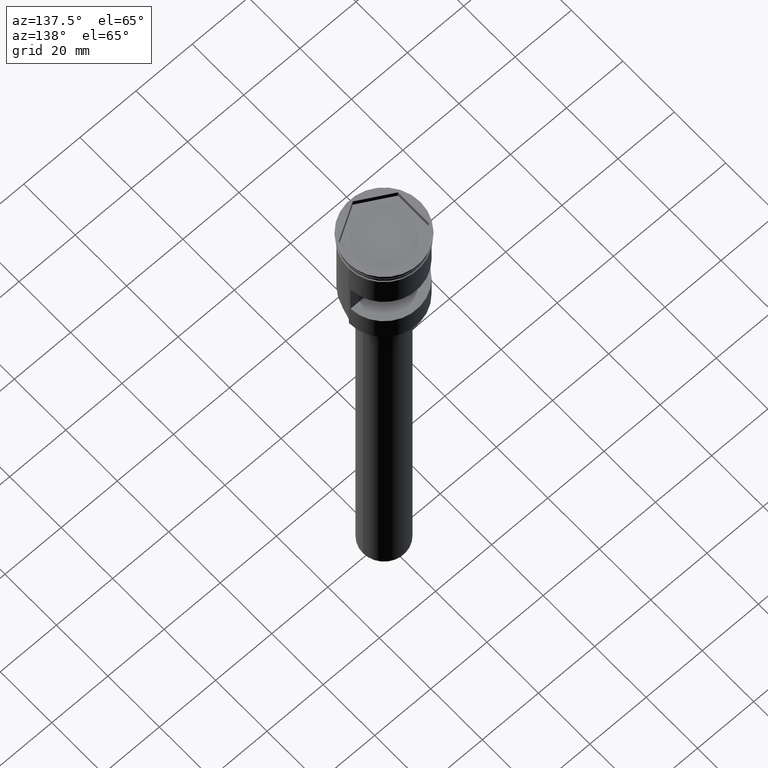
[diagram: clean part render]
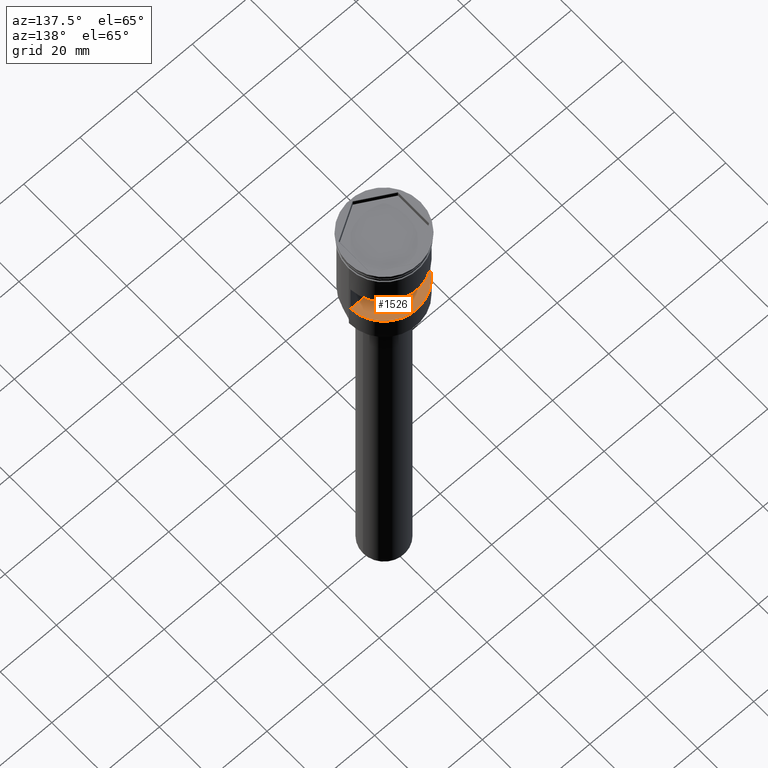
[diagram: same view with one face highlighted and labeled with its STEP entity id]
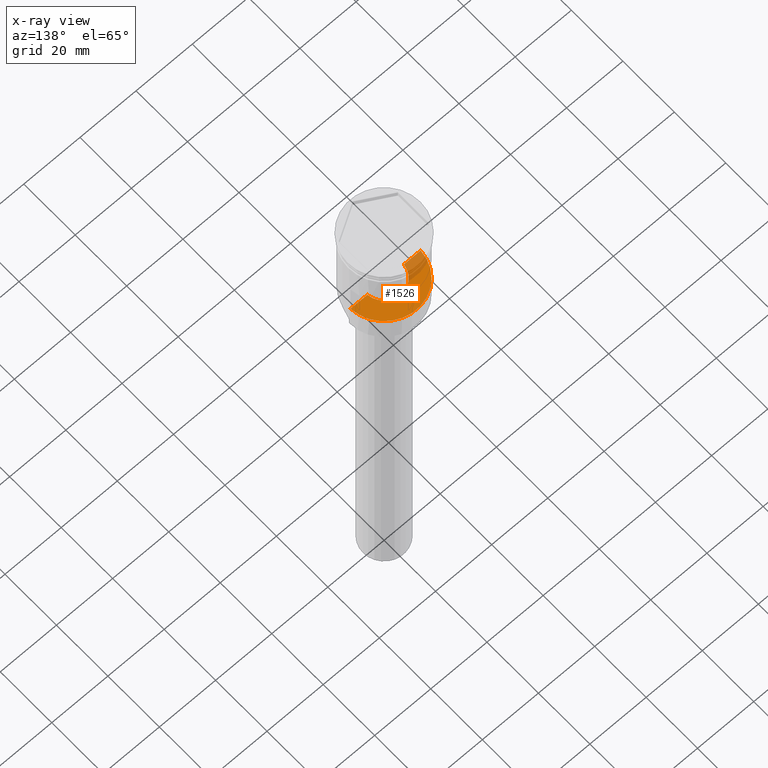
[diagram: x-ray of the same camera — body ghosted, the highlighted face saturated]
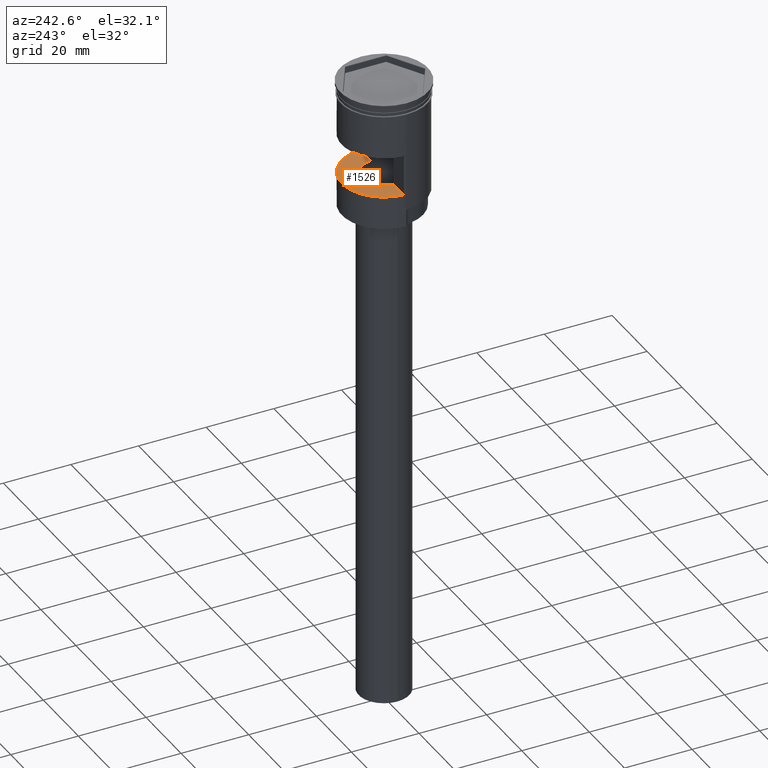
[diagram: same view with one face highlighted and labeled with its STEP entity id]
A machine part, auxiliary view. The second image highlights one B-rep face of the part: STEP entity #1526.
The next image is the same camera in x-ray: the body ghosted, the highlighted face saturated — about 16% of this face is hidden behind the body in this view.
A second angle (auxiliary view) of the same face is appended — the face is thin or edge-on in the first view.
In plain terms, the highlighted planar face has unit normal (-0, 0, -1).
Its self-contained STEP definition (entity closure, byte-faithful):
#16 = CARTESIAN_POINT ( 'NONE',  ( -13.00000000000000178, 0.6000000000000003109, -28.49999999999999645 ) ) ;
#61 = CARTESIAN_POINT ( 'NONE',  ( -13.00000000000000178, 0.6000000000000003109, -28.49999999999999645 ) ) ;
#154 = VERTEX_POINT ( 'NONE', #667 ) ;
#161 = AXIS2_PLACEMENT_3D ( 'NONE', #898, #661, #550 ) ;
#167 = ORIENTED_EDGE ( 'NONE', *, *, #1162, .T. ) ;
#198 = LINE ( 'NONE', #61, #1559 ) ;
#212 = DIRECTION ( 'NONE',  ( 1.000000000000000000, -0.000000000000000000, -0.000000000000000000 ) ) ;
#213 = CIRCLE ( 'NONE', #1130, 6.500000000000000888 ) ;
#224 = ORIENTED_EDGE ( 'NONE', *, *, #275, .T. ) ;
#275 = EDGE_CURVE ( 'NONE', #1036, #742, #1562, .T. ) ;
#337 = CARTESIAN_POINT ( 'NONE',  ( 12.48559169603106689, 0.6000000000000003109, -28.49999999999999645 ) ) ;
#395 = CARTESIAN_POINT ( 'NONE',  ( 6.472248450113761820, 0.6000000000000003109, -28.49999999999999645 ) ) ;
#402 = FACE_OUTER_BOUND ( 'NONE', #626, .T. ) ;
#486 = VERTEX_POINT ( 'NONE', #395 ) ;
#532 = PLANE ( 'NONE',  #161 ) ;
#550 = DIRECTION ( 'NONE',  ( -1.000000000000000000, 0.000000000000000000, 0.000000000000000000 ) ) ;
#567 = EDGE_CURVE ( 'NONE', #486, #1036, #1367, .T. ) ;
#571 = CARTESIAN_POINT ( 'NONE',  ( 0.000000000000000000, 0.000000000000000000, -28.49999999999999645 ) ) ;
#588 = CARTESIAN_POINT ( 'NONE',  ( 0.000000000000000000, 0.000000000000000000, -28.49999999999999645 ) ) ;
#626 = EDGE_LOOP ( 'NONE', ( #894, #167, #1365, #224 ) ) ;
#634 = AXIS2_PLACEMENT_3D ( 'NONE', #588, #703, #1095 ) ;
#661 = DIRECTION ( 'NONE',  ( -0.000000000000000000, 0.000000000000000000, -1.000000000000000000 ) ) ;
#667 = CARTESIAN_POINT ( 'NONE',  ( -6.472248450113762708, 0.6000000000000003109, -28.49999999999999645 ) ) ;
#703 = DIRECTION ( 'NONE',  ( 0.000000000000000000, 0.000000000000000000, 1.000000000000000000 ) ) ;
#742 = VERTEX_POINT ( 'NONE', #854 ) ;
#854 = CARTESIAN_POINT ( 'NONE',  ( -12.48559169603106689, 0.6000000000000003109, -28.49999999999999645 ) ) ;
#871 = VECTOR ( 'NONE', #1390, 1000.000000000000000 ) ;
#894 = ORIENTED_EDGE ( 'NONE', *, *, #947, .T. ) ;
#898 = CARTESIAN_POINT ( 'NONE',  ( -13.00000000000000178, 12.49999999999999645, -28.49999999999999645 ) ) ;
#947 = EDGE_CURVE ( 'NONE', #742, #154, #198, .T. ) ;
#1036 = VERTEX_POINT ( 'NONE', #337 ) ;
#1095 = DIRECTION ( 'NONE',  ( -1.000000000000000000, 0.000000000000000000, 0.000000000000000000 ) ) ;
#1130 = AXIS2_PLACEMENT_3D ( 'NONE', #571, #1555, #1203 ) ;
#1162 = EDGE_CURVE ( 'NONE', #154, #486, #213, .T. ) ;
#1203 = DIRECTION ( 'NONE',  ( -1.000000000000000000, 0.000000000000000000, 0.000000000000000000 ) ) ;
#1365 = ORIENTED_EDGE ( 'NONE', *, *, #567, .T. ) ;
#1367 = LINE ( 'NONE', #16, #871 ) ;
#1390 = DIRECTION ( 'NONE',  ( 1.000000000000000000, -0.000000000000000000, -0.000000000000000000 ) ) ;
#1526 = ADVANCED_FACE ( 'NONE', ( #402 ), #532, .F. ) ;
#1555 = DIRECTION ( 'NONE',  ( -0.000000000000000000, -0.000000000000000000, -1.000000000000000000 ) ) ;
#1559 = VECTOR ( 'NONE', #212, 1000.000000000000000 ) ;
#1562 = CIRCLE ( 'NONE', #634, 12.49999999999999645 ) ;